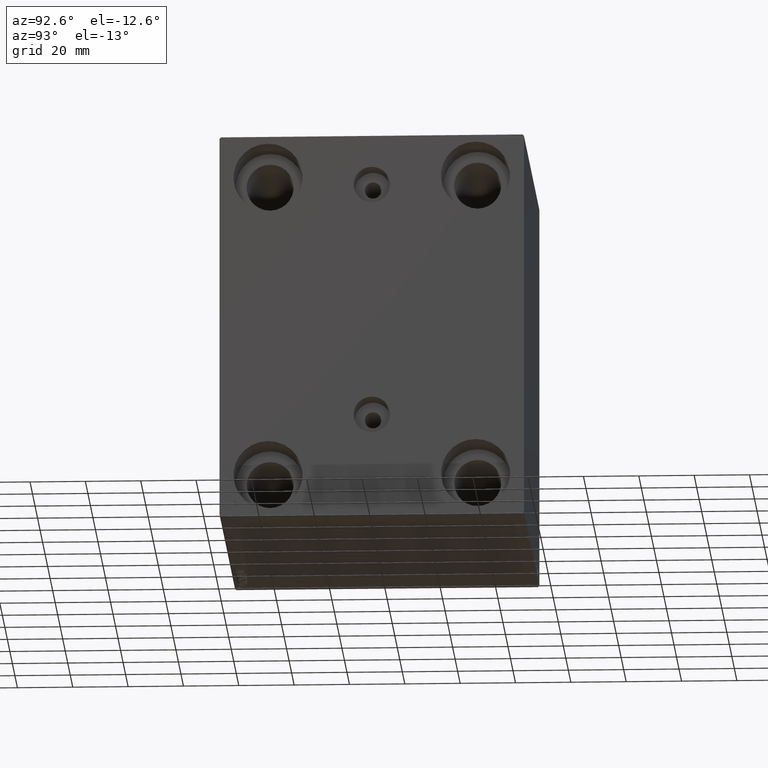
[diagram: clean part render]
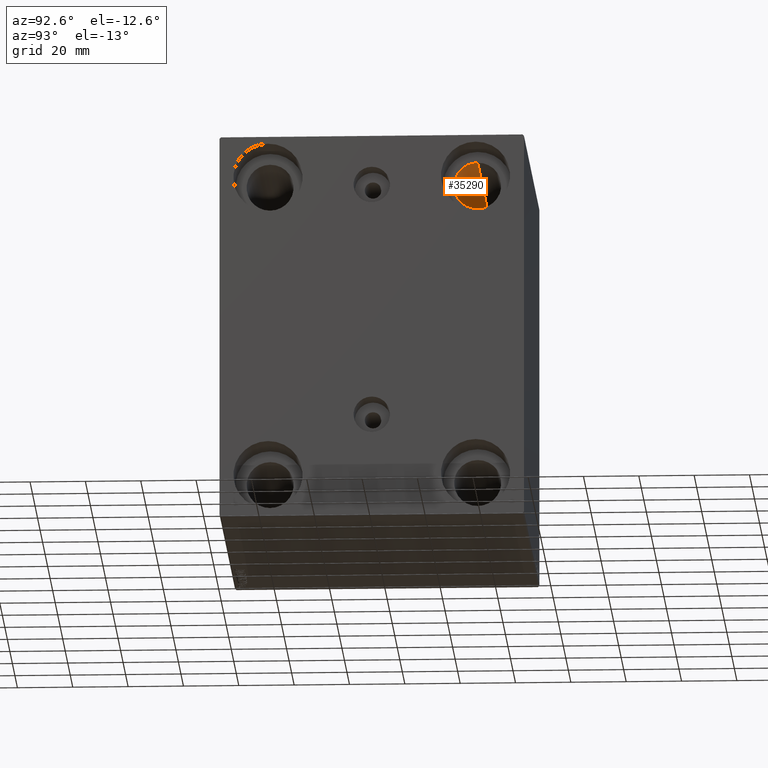
[diagram: same view with one face highlighted and labeled with its STEP entity id]
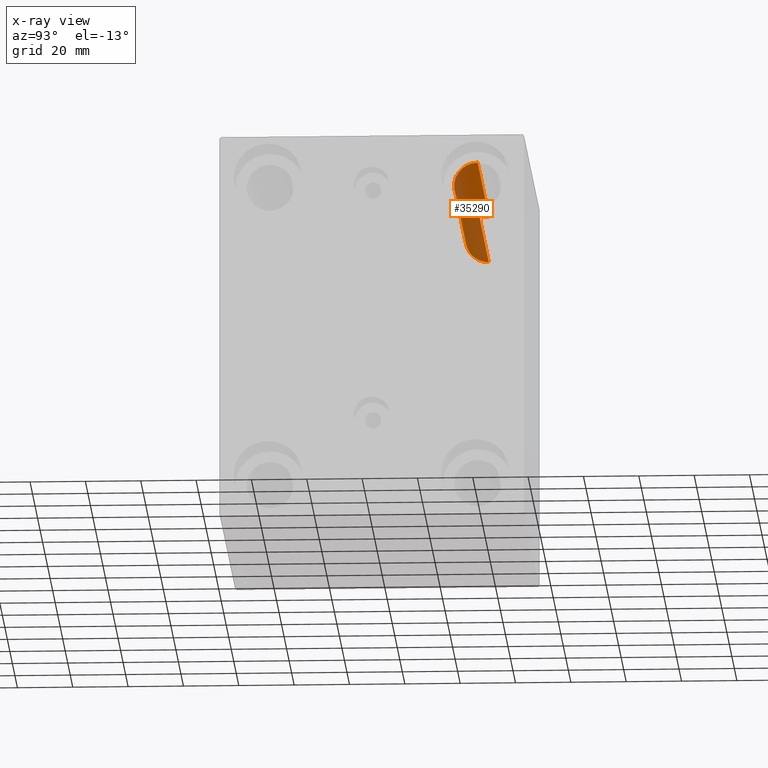
[diagram: x-ray of the same camera — body ghosted, the highlighted face saturated]
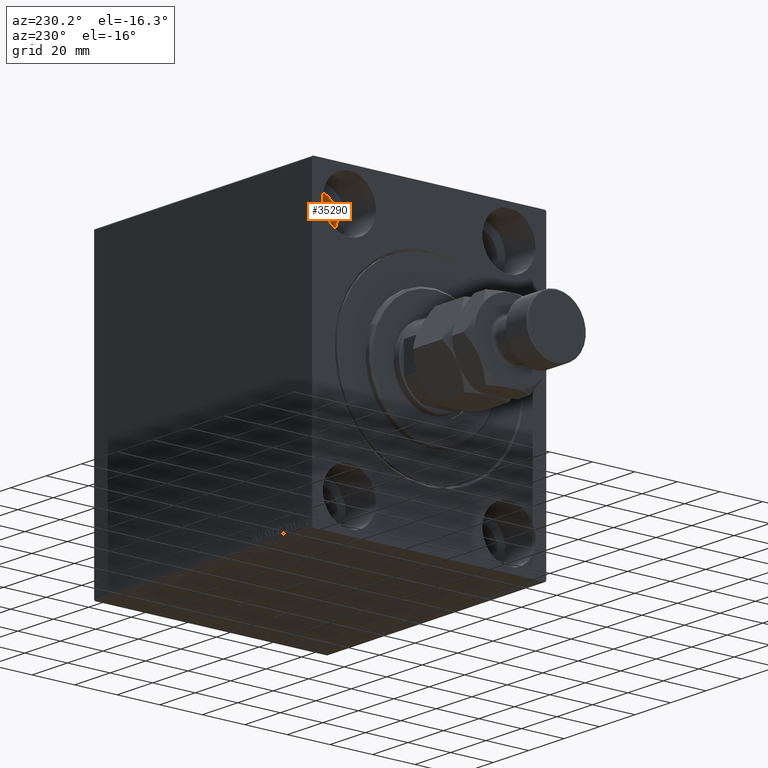
[diagram: same view with one face highlighted and labeled with its STEP entity id]
A machine part, auxiliary view. The second image highlights one B-rep face of the part: STEP entity #35290.
The next image is the same camera in x-ray: the body ghosted, the highlighted face saturated — about 44% of this face is hidden behind the body in this view.
A second angle (auxiliary view) of the same face is appended — the face is thin or edge-on in the first view.
In plain terms, the highlighted cylindrical surface (edge-blend (fillet) strip) has radius 8.5 mm, axis along (-1, -0, -0).
Its self-contained STEP definition (entity closure, byte-faithful):
#1120 = DIRECTION ( 'NONE',  ( -1.000000000000000000, -0.000000000000000000, -0.000000000000000000 ) ) ;
#1126 = EDGE_LOOP ( 'NONE', ( #6403, #7111, #44613, #5535 ) ) ;
#1266 = CIRCLE ( 'NONE', #43889, 8.499999999999992895 ) ;
#1563 = DIRECTION ( 'NONE',  ( 0.000000000000000000, 0.000000000000000000, -1.000000000000000000 ) ) ;
#2457 = EDGE_CURVE ( 'NONE', #16070, #37528, #1266, .T. ) ;
#2569 = CARTESIAN_POINT ( 'NONE',  ( 17.00000000000000000, 37.50000000000000711, 63.50000000000000000 ) ) ;
#4568 = LINE ( 'NONE', #18596, #33829 ) ;
#4718 = DIRECTION ( 'NONE',  ( -1.000000000000000000, -0.000000000000000000, -0.000000000000000000 ) ) ;
#5381 = VERTEX_POINT ( 'NONE', #2569 ) ;
#5535 = ORIENTED_EDGE ( 'NONE', *, *, #44467, .F. ) ;
#6403 = ORIENTED_EDGE ( 'NONE', *, *, #2457, .F. ) ;
#7111 = ORIENTED_EDGE ( 'NONE', *, *, #31539, .T. ) ;
#8704 = CARTESIAN_POINT ( 'NONE',  ( 106.0000000000000000, 37.50000000000000711, 55.00000000000000711 ) ) ;
#11858 = LINE ( 'NONE', #18310, #39610 ) ;
#13302 = CYLINDRICAL_SURFACE ( 'NONE', #14825, 8.499999999999992895 ) ;
#13520 = FACE_OUTER_BOUND ( 'NONE', #1126, .T. ) ;
#14825 = AXIS2_PLACEMENT_3D ( 'NONE', #24548, #20429, #21105 ) ;
#16070 = VERTEX_POINT ( 'NONE', #25877 ) ;
#17624 = VERTEX_POINT ( 'NONE', #29633 ) ;
#18310 = CARTESIAN_POINT ( 'NONE',  ( 123.0000000000000000, 37.50000000000000711, 46.50000000000001421 ) ) ;
#18532 = CARTESIAN_POINT ( 'NONE',  ( 17.00000000000000000, 37.50000000000000711, 55.00000000000000711 ) ) ;
#18596 = CARTESIAN_POINT ( 'NONE',  ( 123.0000000000000000, 37.50000000000000711, 63.50000000000000000 ) ) ;
#20429 = DIRECTION ( 'NONE',  ( -1.000000000000000000, -0.000000000000000000, -0.000000000000000000 ) ) ;
#21105 = DIRECTION ( 'NONE',  ( 0.000000000000000000, 0.000000000000000000, 1.000000000000000000 ) ) ;
#24548 = CARTESIAN_POINT ( 'NONE',  ( 123.0000000000000000, 37.50000000000000711, 55.00000000000000711 ) ) ;
#25877 = CARTESIAN_POINT ( 'NONE',  ( 106.0000000000000000, 37.50000000000000711, 46.50000000000001421 ) ) ;
#26387 = CIRCLE ( 'NONE', #38885, 8.499999999999992895 ) ;
#29633 = CARTESIAN_POINT ( 'NONE',  ( 17.00000000000000000, 37.50000000000000711, 46.50000000000001421 ) ) ;
#30177 = CARTESIAN_POINT ( 'NONE',  ( 106.0000000000000000, 37.50000000000000711, 63.50000000000000000 ) ) ;
#31539 = EDGE_CURVE ( 'NONE', #16070, #17624, #11858, .T. ) ;
#32118 = DIRECTION ( 'NONE',  ( -1.000000000000000000, 0.000000000000000000, 0.000000000000000000 ) ) ;
#32353 = EDGE_CURVE ( 'NONE', #17624, #5381, #26387, .T. ) ;
#33829 = VECTOR ( 'NONE', #1120, 1000.000000000000000 ) ;
#35290 = ADVANCED_FACE ( 'NONE', ( #13520 ), #13302, .F. ) ;
#37528 = VERTEX_POINT ( 'NONE', #30177 ) ;
#38885 = AXIS2_PLACEMENT_3D ( 'NONE', #18532, #32118, #43183 ) ;
#39610 = VECTOR ( 'NONE', #4718, 1000.000000000000000 ) ;
#39987 = DIRECTION ( 'NONE',  ( -1.000000000000000000, -0.000000000000000000, -0.000000000000000000 ) ) ;
#43183 = DIRECTION ( 'NONE',  ( 0.000000000000000000, 0.000000000000000000, 1.000000000000000000 ) ) ;
#43889 = AXIS2_PLACEMENT_3D ( 'NONE', #8704, #39987, #1563 ) ;
#44467 = EDGE_CURVE ( 'NONE', #37528, #5381, #4568, .T. ) ;
#44613 = ORIENTED_EDGE ( 'NONE', *, *, #32353, .T. ) ;